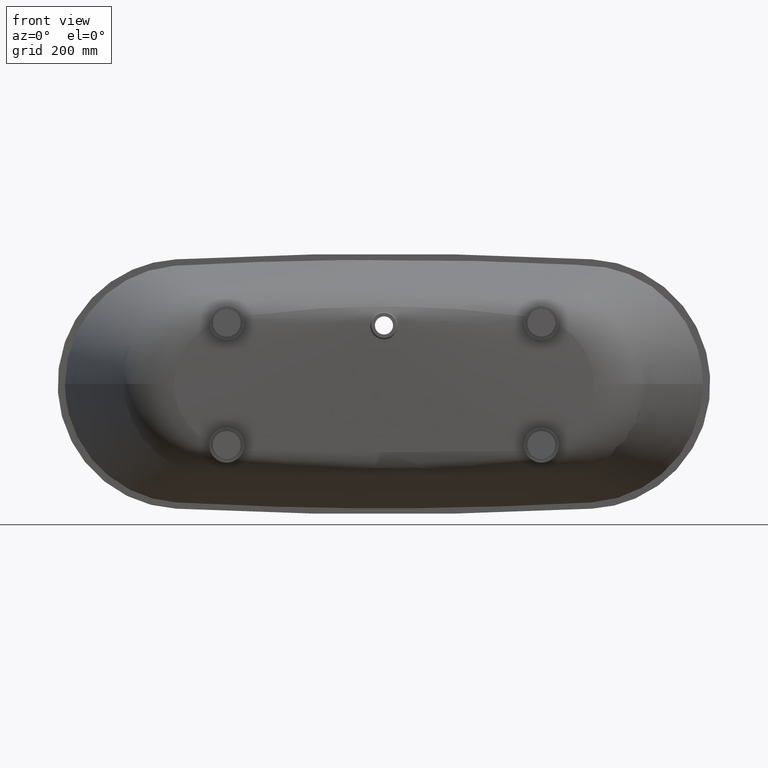
[diagram: clean part render]
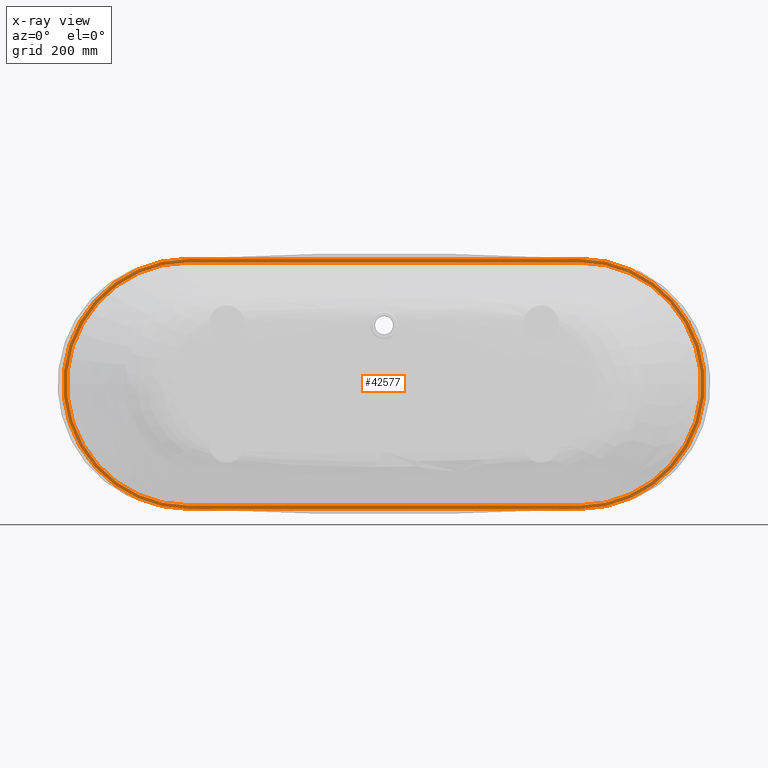
[diagram: x-ray — body ghosted, one internal face saturated and labeled with its STEP entity id]
A machine part, front view, then the same camera in x-ray: the body is ghosted and one INTERNAL B-rep face — a face not visible from any outside direction — is saturated and labeled: STEP entity #42577.
In plain terms, the highlighted planar face has unit normal (0, 1, 0).
Its self-contained STEP definition (entity closure, byte-faithful):
#537 = CARTESIAN_POINT ( 'NONE',  ( -560.0000000000001100, -10.00000000000000000, 0.0000000000000000000 ) ) ;
#1378 = EDGE_CURVE ( 'NONE', #33800, #39135, #36402, .T. ) ;
#2615 = FACE_BOUND ( 'NONE', #38443, .T. ) ;
#4024 = DIRECTION ( 'NONE',  ( 0.0000000000000000000, 0.0000000000000000000, 1.000000000000000000 ) ) ;
#4090 = DIRECTION ( 'NONE',  ( 0.0000000000000000000, 1.000000000000000000, 0.0000000000000000000 ) ) ;
#4160 = CARTESIAN_POINT ( 'NONE',  ( -560.0000000000001100, -10.00000000000000000, 0.0000000000000000000 ) ) ;
#4468 = AXIS2_PLACEMENT_3D ( 'NONE', #35982, #35936, #35557 ) ;
#4885 = DIRECTION ( 'NONE',  ( 0.0000000000000000000, 0.0000000000000000000, 1.000000000000000000 ) ) ;
#6525 = DIRECTION ( 'NONE',  ( 1.000000000000000000, 0.0000000000000000000, -1.982541115402064400E-016 ) ) ;
#7072 = CARTESIAN_POINT ( 'NONE',  ( -560.0000000000001100, -10.00000000000000000, 357.5000000000000600 ) ) ;
#8134 = CIRCLE ( 'NONE', #4468, 347.5000000000000600 ) ;
#10098 = ORIENTED_EDGE ( 'NONE', *, *, #20313, .T. ) ;
#10752 = CARTESIAN_POINT ( 'NONE',  ( 560.0000000000004500, -10.00000000000000000, 347.4999999999998300 ) ) ;
#14051 = AXIS2_PLACEMENT_3D ( 'NONE', #55903, #55722, #55574 ) ;
#14696 = VERTEX_POINT ( 'NONE', #10752 ) ;
#15458 = AXIS2_PLACEMENT_3D ( 'NONE', #4160, #4090, #4024 ) ;
#16100 = EDGE_CURVE ( 'NONE', #20488, #39720, #29113, .T. ) ;
#16110 = VECTOR ( 'NONE', #35201, 1000.000000000000000 ) ;
#17351 = CARTESIAN_POINT ( 'NONE',  ( 559.9999999999998900, -10.00000000000000000, -347.5000000000002300 ) ) ;
#19334 = AXIS2_PLACEMENT_3D ( 'NONE', #537, #30692, #4885 ) ;
#19935 = VERTEX_POINT ( 'NONE', #17351 ) ;
#20313 = EDGE_CURVE ( 'NONE', #14696, #19935, #8134, .T. ) ;
#20488 = VERTEX_POINT ( 'NONE', #30281 ) ;
#21761 = EDGE_CURVE ( 'NONE', #22800, #33800, #41289, .T. ) ;
#22800 = VERTEX_POINT ( 'NONE', #29055 ) ;
#24861 = LINE ( 'NONE', #34396, #34940 ) ;
#27093 = ORIENTED_EDGE ( 'NONE', *, *, #50908, .F. ) ;
#27407 = ORIENTED_EDGE ( 'NONE', *, *, #1378, .F. ) ;
#28262 = EDGE_CURVE ( 'NONE', #44251, #22800, #43885, .T. ) ;
#28475 = CARTESIAN_POINT ( 'NONE',  ( -560.0000000000001100, -10.00000000000000000, 357.5000000000000600 ) ) ;
#29055 = CARTESIAN_POINT ( 'NONE',  ( 560.0000000000003400, -10.00000000000000000, 357.4999999999997200 ) ) ;
#29113 = CIRCLE ( 'NONE', #15458, 347.5000000000000600 ) ;
#30281 = CARTESIAN_POINT ( 'NONE',  ( -560.0000000000001100, -10.00000000000000000, -347.5000000000000600 ) ) ;
#30692 = DIRECTION ( 'NONE',  ( 0.0000000000000000000, 1.000000000000000000, 0.0000000000000000000 ) ) ;
#31220 = DIRECTION ( 'NONE',  ( 0.0000000000000000000, -0.0000000000000000000, 1.000000000000000000 ) ) ;
#31277 = DIRECTION ( 'NONE',  ( 0.0000000000000000000, 1.000000000000000000, 0.0000000000000000000 ) ) ;
#31297 = PLANE ( 'NONE',  #48241 ) ;
#32027 = CARTESIAN_POINT ( 'NONE',  ( -560.0000000000001100, -10.00000000000000000, 0.0000000000000000000 ) ) ;
#32354 = VECTOR ( 'NONE', #6525, 1000.000000000000000 ) ;
#32953 = DIRECTION ( 'NONE',  ( -1.000000000000000000, -0.0000000000000000000, 1.982541115402065100E-016 ) ) ;
#33015 = CARTESIAN_POINT ( 'NONE',  ( -560.0000000000001100, -10.00000000000000000, -347.5000000000000600 ) ) ;
#33800 = VERTEX_POINT ( 'NONE', #39187 ) ;
#34017 = DIRECTION ( 'NONE',  ( 1.000000000000000000, 0.0000000000000000000, -1.982541115402064400E-016 ) ) ;
#34396 = CARTESIAN_POINT ( 'NONE',  ( -560.0000000000001100, -10.00000000000000000, 347.5000000000000600 ) ) ;
#34885 = CARTESIAN_POINT ( 'NONE',  ( -560.0000000000001100, -10.00000000000000000, 347.5000000000000600 ) ) ;
#34940 = VECTOR ( 'NONE', #34017, 1000.000000000000000 ) ;
#35058 = CARTESIAN_POINT ( 'NONE',  ( -560.0000000000001100, -10.00000000000000000, -357.5000000000000600 ) ) ;
#35201 = DIRECTION ( 'NONE',  ( -1.000000000000000000, -0.0000000000000000000, -0.0000000000000000000 ) ) ;
#35348 = CARTESIAN_POINT ( 'NONE',  ( -560.0000000000001100, -10.00000000000000000, -357.5000000000000600 ) ) ;
#35557 = DIRECTION ( 'NONE',  ( 0.0000000000000000000, 0.0000000000000000000, 1.000000000000000000 ) ) ;
#35936 = DIRECTION ( 'NONE',  ( 0.0000000000000000000, 1.000000000000000000, 0.0000000000000000000 ) ) ;
#35982 = CARTESIAN_POINT ( 'NONE',  ( 560.0000000000001100, -10.00000000000000000, -2.057406622567553800E-013 ) ) ;
#36078 = ORIENTED_EDGE ( 'NONE', *, *, #28262, .F. ) ;
#36402 = LINE ( 'NONE', #35058, #16110 ) ;
#37704 = ORIENTED_EDGE ( 'NONE', *, *, #16100, .T. ) ;
#38443 = EDGE_LOOP ( 'NONE', ( #48994, #37704, #44408, #10098 ) ) ;
#38477 = ORIENTED_EDGE ( 'NONE', *, *, #21761, .F. ) ;
#39135 = VERTEX_POINT ( 'NONE', #35348 ) ;
#39187 = CARTESIAN_POINT ( 'NONE',  ( 560.0000000000000000, -10.00000000000000000, -357.5000000000000600 ) ) ;
#39720 = VERTEX_POINT ( 'NONE', #34885 ) ;
#39742 = FACE_OUTER_BOUND ( 'NONE', #55212, .T. ) ;
#40761 = EDGE_CURVE ( 'NONE', #39720, #14696, #24861, .T. ) ;
#41289 = CIRCLE ( 'NONE', #14051, 357.4999999999999400 ) ;
#41542 = EDGE_CURVE ( 'NONE', #19935, #20488, #42501, .T. ) ;
#41831 = CIRCLE ( 'NONE', #19334, 357.5000000000000600 ) ;
#42501 = LINE ( 'NONE', #33015, #52605 ) ;
#42577 = ADVANCED_FACE ( 'NONE', ( #2615, #39742 ), #31297, .F. ) ;
#43885 = LINE ( 'NONE', #7072, #32354 ) ;
#44251 = VERTEX_POINT ( 'NONE', #28475 ) ;
#44408 = ORIENTED_EDGE ( 'NONE', *, *, #40761, .T. ) ;
#48241 = AXIS2_PLACEMENT_3D ( 'NONE', #32027, #31277, #31220 ) ;
#48994 = ORIENTED_EDGE ( 'NONE', *, *, #41542, .T. ) ;
#50908 = EDGE_CURVE ( 'NONE', #39135, #44251, #41831, .T. ) ;
#52605 = VECTOR ( 'NONE', #32953, 1000.000000000000000 ) ;
#55212 = EDGE_LOOP ( 'NONE', ( #27093, #27407, #38477, #36078 ) ) ;
#55574 = DIRECTION ( 'NONE',  ( 0.0000000000000000000, 0.0000000000000000000, 1.000000000000000000 ) ) ;
#55722 = DIRECTION ( 'NONE',  ( 0.0000000000000000000, 1.000000000000000000, 0.0000000000000000000 ) ) ;
#55903 = CARTESIAN_POINT ( 'NONE',  ( 560.0000000000001100, -10.00000000000000000, -2.057406622567553800E-013 ) ) ;